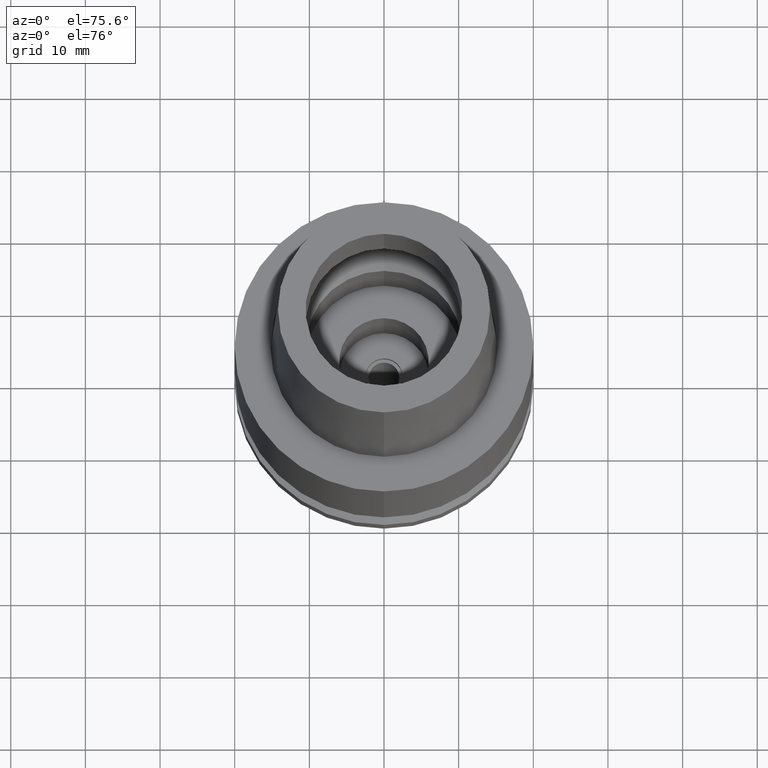
[diagram: clean part render]
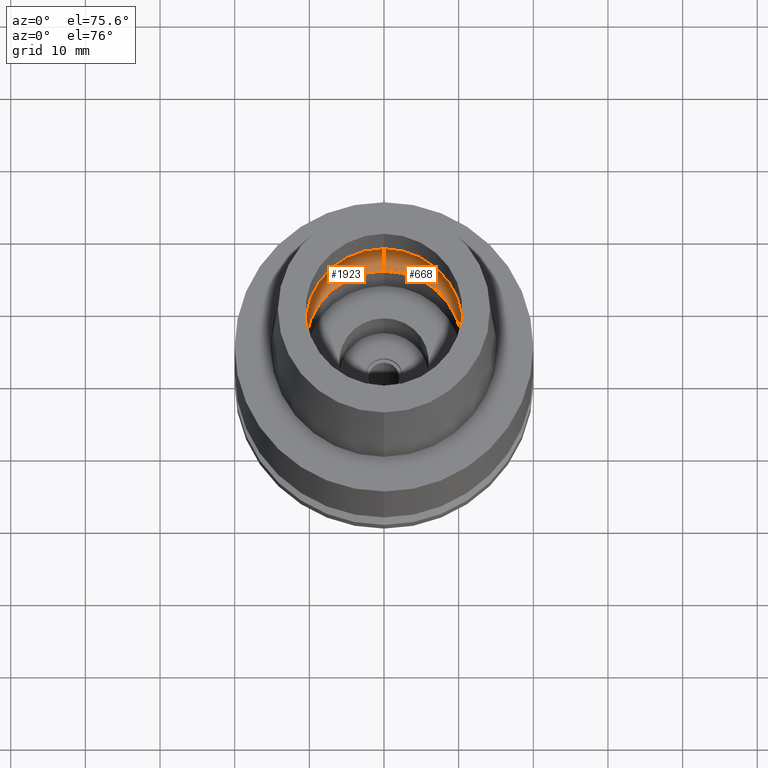
[diagram: same view with one multi-face feature highlighted, each face labeled with its STEP entity id]
A machine part, auxiliary view. The highlighted faces form ONE feature: a constant-radius fillet chain: 2 tangent blend faces with common blend radius 5 mm. The faces share edges in the B-rep.
Their STEP definitions:
[1] entity #1923 (Torus):
#52 = AXIS2_PLACEMENT_3D ( 'NONE', #1401, #1623, #2037 ) ;
#123 = DIRECTION ( 'NONE',  ( 0.0000000000000000000, 0.5500000000000007105, -0.8351646544245028281 ) ) ;
#234 = DIRECTION ( 'NONE',  ( 0.0000000000000000000, -0.5500000000000007105, -0.8351646544245028281 ) ) ;
#295 = DIRECTION ( 'NONE',  ( 0.0000000000000000000, 0.0000000000000000000, 1.000000000000000000 ) ) ;
#358 = DIRECTION ( 'NONE',  ( 0.0000000000000000000, 1.000000000000000000, 0.0000000000000000000 ) ) ;
#477 = ORIENTED_EDGE ( 'NONE', *, *, #1677, .T. ) ;
#496 = EDGE_CURVE ( 'NONE', #1684, #1600, #899, .T. ) ;
#549 = DIRECTION ( 'NONE',  ( 0.0000000000000000000, 0.0000000000000000000, 1.000000000000000000 ) ) ;
#562 = EDGE_CURVE ( 'NONE', #738, #1684, #1077, .T. ) ;
#738 = VERTEX_POINT ( 'NONE', #1544 ) ;
#751 = AXIS2_PLACEMENT_3D ( 'NONE', #1340, #295, #1914 ) ;
#871 = ORIENTED_EDGE ( 'NONE', *, *, #562, .F. ) ;
#899 = CIRCLE ( 'NONE', #52, 12.75000000000000000 ) ;
#960 = CARTESIAN_POINT ( 'NONE',  ( 0.0000000000000000000, 7.750000000000000000, 4.225999999999999979 ) ) ;
#1013 = CARTESIAN_POINT ( 'NONE',  ( 0.0000000000000000000, -7.750000000000000000, 4.225999999999999979 ) ) ;
#1077 = CIRCLE ( 'NONE', #1858, 4.999999999999994671 ) ;
#1231 = DIRECTION ( 'NONE',  ( -1.000000000000000000, 0.0000000000000000000, 0.0000000000000000000 ) ) ;
#1297 = CARTESIAN_POINT ( 'NONE',  ( 0.0000000000000000000, 12.75000000000000000, 4.225999999999999979 ) ) ;
#1340 = CARTESIAN_POINT ( 'NONE',  ( 0.0000000000000000000, 0.0000000000000000000, 4.225999999999999979 ) ) ;
#1401 = CARTESIAN_POINT ( 'NONE',  ( 0.0000000000000000000, 0.0000000000000000000, 4.225999999999999979 ) ) ;
#1544 = CARTESIAN_POINT ( 'NONE',  ( 0.0000000000000000000, -10.50000000000000000, 0.05017672787747999574 ) ) ;
#1600 = VERTEX_POINT ( 'NONE', #1297 ) ;
#1623 = DIRECTION ( 'NONE',  ( 0.0000000000000000000, 0.0000000000000000000, -1.000000000000000000 ) ) ;
#1656 = CARTESIAN_POINT ( 'NONE',  ( 0.0000000000000000000, 0.0000000000000000000, 0.05017672787747999574 ) ) ;
#1677 = EDGE_CURVE ( 'NONE', #2132, #1600, #1985, .T. ) ;
#1680 = AXIS2_PLACEMENT_3D ( 'NONE', #960, #2616, #123 ) ;
#1684 = VERTEX_POINT ( 'NONE', #2573 ) ;
#1858 = AXIS2_PLACEMENT_3D ( 'NONE', #1013, #1231, #234 ) ;
#1914 = DIRECTION ( 'NONE',  ( 0.0000000000000000000, 1.000000000000000000, 0.0000000000000000000 ) ) ;
#1919 = TOROIDAL_SURFACE ( 'NONE', #751, 7.750000000000000000, 5.000000000000000000 ) ;
#1923 = ADVANCED_FACE ( 'NONE', ( #2360 ), #1919, .F. ) ;
#1985 = CIRCLE ( 'NONE', #1680, 4.999999999999994671 ) ;
#2008 = EDGE_LOOP ( 'NONE', ( #2507, #871, #2553, #477 ) ) ;
#2037 = DIRECTION ( 'NONE',  ( 0.0000000000000000000, -1.000000000000000000, 0.0000000000000000000 ) ) ;
#2132 = VERTEX_POINT ( 'NONE', #2549 ) ;
#2360 = FACE_OUTER_BOUND ( 'NONE', #2008, .T. ) ;
#2372 = EDGE_CURVE ( 'NONE', #2132, #738, #2443, .T. ) ;
#2443 = CIRCLE ( 'NONE', #2566, 10.50000000000000000 ) ;
#2507 = ORIENTED_EDGE ( 'NONE', *, *, #496, .F. ) ;
#2549 = CARTESIAN_POINT ( 'NONE',  ( 0.0000000000000000000, 10.50000000000000000, 0.05017672787746999680 ) ) ;
#2553 = ORIENTED_EDGE ( 'NONE', *, *, #2372, .F. ) ;
#2566 = AXIS2_PLACEMENT_3D ( 'NONE', #1656, #549, #358 ) ;
#2573 = CARTESIAN_POINT ( 'NONE',  ( 0.0000000000000000000, -12.75000000000000000, 4.225999999999999979 ) ) ;
#2616 = DIRECTION ( 'NONE',  ( 1.000000000000000000, 0.0000000000000000000, 0.0000000000000000000 ) ) ;
[2] entity #668 (Torus):
#123 = DIRECTION ( 'NONE',  ( 0.0000000000000000000, 0.5500000000000007105, -0.8351646544245028281 ) ) ;
#234 = DIRECTION ( 'NONE',  ( 0.0000000000000000000, -0.5500000000000007105, -0.8351646544245028281 ) ) ;
#398 = DIRECTION ( 'NONE',  ( 0.0000000000000000000, 0.0000000000000000000, 1.000000000000000000 ) ) ;
#459 = AXIS2_PLACEMENT_3D ( 'NONE', #611, #398, #1232 ) ;
#490 = EDGE_LOOP ( 'NONE', ( #1133, #1910, #1165, #1559 ) ) ;
#562 = EDGE_CURVE ( 'NONE', #738, #1684, #1077, .T. ) ;
#611 = CARTESIAN_POINT ( 'NONE',  ( 0.0000000000000000000, 0.0000000000000000000, 0.05017672787747999574 ) ) ;
#668 = ADVANCED_FACE ( 'NONE', ( #2123 ), #2064, .F. ) ;
#738 = VERTEX_POINT ( 'NONE', #1544 ) ;
#897 = DIRECTION ( 'NONE',  ( 0.0000000000000000000, 1.000000000000000000, 0.0000000000000000000 ) ) ;
#903 = DIRECTION ( 'NONE',  ( 0.0000000000000000000, 1.000000000000000000, 0.0000000000000000000 ) ) ;
#916 = DIRECTION ( 'NONE',  ( 0.0000000000000000000, 0.0000000000000000000, -1.000000000000000000 ) ) ;
#950 = CIRCLE ( 'NONE', #459, 10.50000000000000000 ) ;
#960 = CARTESIAN_POINT ( 'NONE',  ( 0.0000000000000000000, 7.750000000000000000, 4.225999999999999979 ) ) ;
#1013 = CARTESIAN_POINT ( 'NONE',  ( 0.0000000000000000000, -7.750000000000000000, 4.225999999999999979 ) ) ;
#1077 = CIRCLE ( 'NONE', #1858, 4.999999999999994671 ) ;
#1133 = ORIENTED_EDGE ( 'NONE', *, *, #1464, .F. ) ;
#1163 = AXIS2_PLACEMENT_3D ( 'NONE', #1940, #2327, #897 ) ;
#1165 = ORIENTED_EDGE ( 'NONE', *, *, #1563, .F. ) ;
#1231 = DIRECTION ( 'NONE',  ( -1.000000000000000000, 0.0000000000000000000, 0.0000000000000000000 ) ) ;
#1232 = DIRECTION ( 'NONE',  ( 0.0000000000000000000, -1.000000000000000000, 0.0000000000000000000 ) ) ;
#1297 = CARTESIAN_POINT ( 'NONE',  ( 0.0000000000000000000, 12.75000000000000000, 4.225999999999999979 ) ) ;
#1464 = EDGE_CURVE ( 'NONE', #738, #2132, #950, .T. ) ;
#1544 = CARTESIAN_POINT ( 'NONE',  ( 0.0000000000000000000, -10.50000000000000000, 0.05017672787747999574 ) ) ;
#1559 = ORIENTED_EDGE ( 'NONE', *, *, #1677, .F. ) ;
#1563 = EDGE_CURVE ( 'NONE', #1600, #1684, #1813, .T. ) ;
#1600 = VERTEX_POINT ( 'NONE', #1297 ) ;
#1677 = EDGE_CURVE ( 'NONE', #2132, #1600, #1985, .T. ) ;
#1680 = AXIS2_PLACEMENT_3D ( 'NONE', #960, #2616, #123 ) ;
#1684 = VERTEX_POINT ( 'NONE', #2573 ) ;
#1813 = CIRCLE ( 'NONE', #2153, 12.75000000000000000 ) ;
#1858 = AXIS2_PLACEMENT_3D ( 'NONE', #1013, #1231, #234 ) ;
#1910 = ORIENTED_EDGE ( 'NONE', *, *, #562, .T. ) ;
#1927 = CARTESIAN_POINT ( 'NONE',  ( 0.0000000000000000000, 0.0000000000000000000, 4.225999999999999979 ) ) ;
#1940 = CARTESIAN_POINT ( 'NONE',  ( 0.0000000000000000000, 0.0000000000000000000, 4.225999999999999979 ) ) ;
#1985 = CIRCLE ( 'NONE', #1680, 4.999999999999994671 ) ;
#2064 = TOROIDAL_SURFACE ( 'NONE', #1163, 7.750000000000000000, 5.000000000000000000 ) ;
#2123 = FACE_OUTER_BOUND ( 'NONE', #490, .T. ) ;
#2132 = VERTEX_POINT ( 'NONE', #2549 ) ;
#2153 = AXIS2_PLACEMENT_3D ( 'NONE', #1927, #916, #903 ) ;
#2327 = DIRECTION ( 'NONE',  ( 0.0000000000000000000, 0.0000000000000000000, 1.000000000000000000 ) ) ;
#2549 = CARTESIAN_POINT ( 'NONE',  ( 0.0000000000000000000, 10.50000000000000000, 0.05017672787746999680 ) ) ;
#2573 = CARTESIAN_POINT ( 'NONE',  ( 0.0000000000000000000, -12.75000000000000000, 4.225999999999999979 ) ) ;
#2616 = DIRECTION ( 'NONE',  ( 1.000000000000000000, 0.0000000000000000000, 0.0000000000000000000 ) ) ;